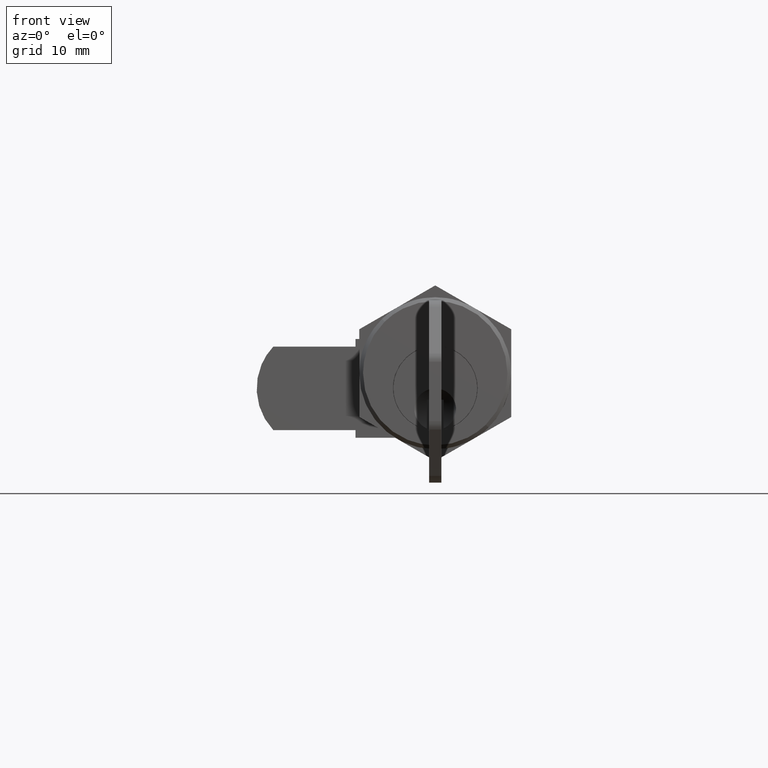
[diagram: clean part render]
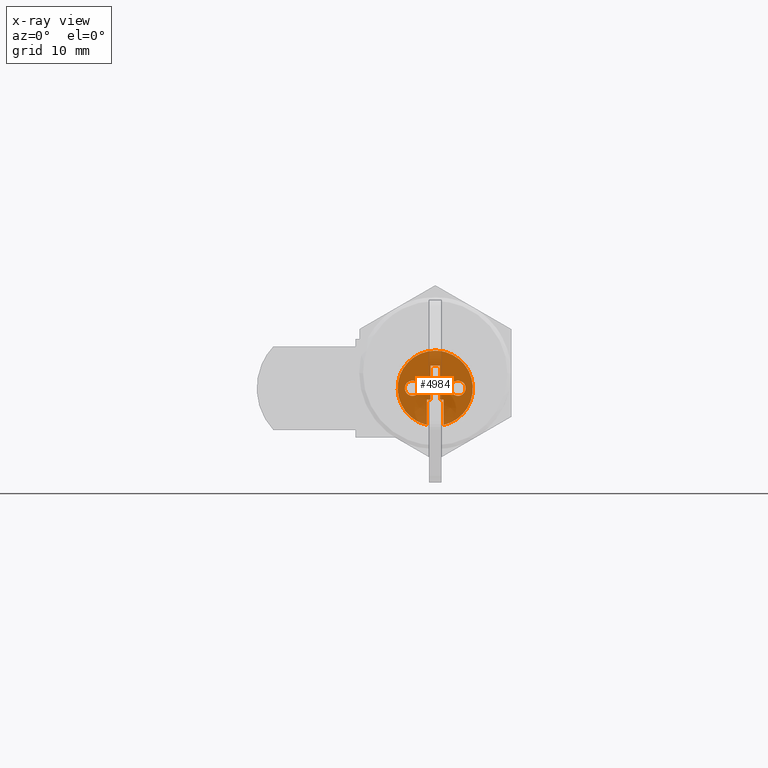
[diagram: x-ray — body ghosted, one internal face saturated and labeled with its STEP entity id]
A machine part, front view, then the same camera in x-ray: the body is ghosted and one INTERNAL B-rep face — a face not visible from any outside direction — is saturated and labeled: STEP entity #4984.
In plain terms, the highlighted face is a freeform B-spline surface patch.
Its self-contained STEP definition (entity closure, byte-faithful):
#3056=CARTESIAN_POINT('',(17.500000000000000,-2.236444006750907,-1.354257604898984));
#3057=VERTEX_POINT('',#3056);
#3063=CARTESIAN_POINT('',(17.500000000000000,-3.000000000000200,-1.0));
#3064=VERTEX_POINT('',#3063);
#3065=CARTESIAN_POINT('',(17.500000000000000,-2.236444006750907,-1.354257604898984));
#3066=CARTESIAN_POINT('',(17.499999999999972,-2.294862467365467,-1.285129228599456));
#3067=CARTESIAN_POINT('',(17.500000000000039,-2.423859136621424,-1.169056239620172));
#3068=CARTESIAN_POINT('',(17.499999999999979,-2.683298962565992,-1.035558044223572));
#3069=CARTESIAN_POINT('',(17.500000000000011,-2.882334917684869,-0.999907696575033));
#3070=CARTESIAN_POINT('',(17.500000000000000,-3.000000000000200,-1.0));
#3071=B_SPLINE_CURVE_WITH_KNOTS('',3,(#3065,#3066,#3067,#3068,#3069,#3070),.UNSPECIFIED.,.F.,.U.,(4,1,1,4),(0.000000055638269,0.271513443459081,0.515858720226509,0.868828469125581),.UNSPECIFIED.);
#3072=EDGE_CURVE('',#3057,#3064,#3071,.T.);
#3074=CARTESIAN_POINT('',(17.500000000000000,-3.999999999998161,-2.000002019345247));
#3075=VERTEX_POINT('',#3074);
#3076=CARTESIAN_POINT('',(17.500000000000000,-3.000000000000200,-1.0));
#3077=CARTESIAN_POINT('',(17.500000000000011,-3.130917829661775,-0.999857626198434));
#3078=CARTESIAN_POINT('',(17.499999999999961,-3.368068012844957,-1.047284692710715));
#3079=CARTESIAN_POINT('',(17.500000000000021,-3.678483872319169,-1.238490316446135));
#3080=CARTESIAN_POINT('',(17.500000000000089,-3.928128706786634,-1.550291968579359));
#3081=CARTESIAN_POINT('',(17.499999999999911,-4.000307448447946,-1.836323539351998));
#3082=CARTESIAN_POINT('',(17.500000000000000,-3.999999999998161,-2.000002019345247));
#3083=B_SPLINE_CURVE_WITH_KNOTS('',3,(#3076,#3077,#3078,#3079,#3080,#3081,#3082),.UNSPECIFIED.,.F.,.U.,(4,1,1,1,4),(0.000000189244568,0.392709946761096,0.711788180132907,1.079947006886161,1.570836882532952),.UNSPECIFIED.);
#3084=EDGE_CURVE('',#3064,#3075,#3083,.T.);
#3086=CARTESIAN_POINT('',(17.500000000000000,-3.000000000000200,-3.0));
#3087=VERTEX_POINT('',#3086);
#3088=CARTESIAN_POINT('',(17.500000000000000,-3.999999999998161,-2.000002019345247));
#3089=CARTESIAN_POINT('',(17.500000000000021,-4.000038485507397,-2.106350306361875));
#3090=CARTESIAN_POINT('',(17.499999999999989,-3.961872482028728,-2.343638151382455));
#3091=CARTESIAN_POINT('',(17.500000000000028,-3.809823777045670,-2.612078212431911));
#3092=CARTESIAN_POINT('',(17.499999999999940,-3.589447263134301,-2.821810014350515));
#3093=CARTESIAN_POINT('',(17.500000000000131,-3.335394529404387,-2.961623037795914));
#3094=CARTESIAN_POINT('',(17.499999999999918,-3.114546331765971,-3.000082902562582));
#3095=CARTESIAN_POINT('',(17.500000000000000,-3.000000000000200,-3.0));
#3096=B_SPLINE_CURVE_WITH_KNOTS('',3,(#3088,#3089,#3090,#3091,#3092,#3093,#3094,#3095),.UNSPECIFIED.,.F.,.U.,(4,1,1,1,1,4),(0.000000192002248,0.319069982665862,0.711787145833374,0.908118156560569,1.227217078186144,1.570834606203426),.UNSPECIFIED.);
#3097=EDGE_CURVE('',#3075,#3087,#3096,.T.);
#3099=CARTESIAN_POINT('',(17.500000000000000,-2.311645889499644,-2.725374117451083));
#3100=VERTEX_POINT('',#3099);
#3101=CARTESIAN_POINT('',(17.500000000000000,-3.000000000000200,-3.0));
#3102=CARTESIAN_POINT('',(17.499999999999989,-2.833823754676799,-3.000399305606349));
#3103=CARTESIAN_POINT('',(17.500000000000082,-2.581167606142226,-2.935425724681109));
#3104=CARTESIAN_POINT('',(17.499999999999940,-2.374738739170179,-2.785260472380591));
#3105=CARTESIAN_POINT('',(17.500000000000000,-2.311645889499644,-2.725374117451083));
#3106=B_SPLINE_CURVE_WITH_KNOTS('',3,(#3101,#3102,#3103,#3104,#3105),.UNSPECIFIED.,.F.,.U.,(4,1,4),(0.000000047227205,0.498245880255061,0.759235673296987),.UNSPECIFIED.);
#3107=EDGE_CURVE('',#3087,#3100,#3106,.T.);
#3185=CARTESIAN_POINT('',(17.500000000000000,-2.000000000002239,-1.999997980654747));
#3186=VERTEX_POINT('',#3185);
#3187=CARTESIAN_POINT('',(17.500000000000000,-2.311645889499644,-2.725374117451083));
#3188=CARTESIAN_POINT('',(17.500000000000011,-2.194861196076007,-2.614989496354446));
#3189=CARTESIAN_POINT('',(17.499999999999989,-2.044999148565709,-2.380426466190825));
#3190=CARTESIAN_POINT('',(17.500000000000011,-1.999954387315525,-2.109896924486803));
#3191=CARTESIAN_POINT('',(17.500000000000000,-2.000000000002239,-1.999997980654747));
#3192=B_SPLINE_CURVE_WITH_KNOTS('',3,(#3187,#3188,#3189,#3190,#3191),.UNSPECIFIED.,.F.,.U.,(4,1,4),(0.000000051697930,0.481886010456351,0.811601825538179),.UNSPECIFIED.);
#3193=EDGE_CURVE('',#3100,#3186,#3192,.T.);
#3195=CARTESIAN_POINT('',(17.500000000000000,-2.000000000002239,-1.999997980654747));
#3196=CARTESIAN_POINT('',(17.500000000000000,-1.999763989368924,-1.853701191058096));
#3197=CARTESIAN_POINT('',(17.500000000000000,-2.052315054601652,-1.619931947292867));
#3198=CARTESIAN_POINT('',(17.499999999999989,-2.179767271395790,-1.421247102610765));
#3199=CARTESIAN_POINT('',(17.500000000000000,-2.236444006750907,-1.354257604898984));
#3200=B_SPLINE_CURVE_WITH_KNOTS('',3,(#3195,#3196,#3197,#3198,#3199),.UNSPECIFIED.,.F.,.U.,(4,1,4),(0.000000040262601,0.438748478310818,0.702006979144675),.UNSPECIFIED.);
#3201=EDGE_CURVE('',#3186,#3057,#3200,.T.);
#3246=CARTESIAN_POINT('',(17.500000000000000,3.763555993249093,-1.354257604898984));
#3247=VERTEX_POINT('',#3246);
#3253=CARTESIAN_POINT('',(17.500000000000000,2.999999999999800,-1.0));
#3254=VERTEX_POINT('',#3253);
#3255=CARTESIAN_POINT('',(17.500000000000000,3.763555993249093,-1.354257604898984));
#3256=CARTESIAN_POINT('',(17.499999999999979,3.675982480304760,-1.250499710066789));
#3257=CARTESIAN_POINT('',(17.500000000000071,3.443230232116521,-1.068244819137016));
#3258=CARTESIAN_POINT('',(17.499999999999940,3.153888542426279,-0.999733268744602));
#3259=CARTESIAN_POINT('',(17.500000000000000,2.999999999999800,-1.0));
#3260=B_SPLINE_CURVE_WITH_KNOTS('',3,(#3255,#3256,#3257,#3258,#3259),.UNSPECIFIED.,.F.,.U.,(4,1,4),(0.000000055638317,0.407275197343132,0.868828469125581),.UNSPECIFIED.);
#3261=EDGE_CURVE('',#3247,#3254,#3260,.T.);
#3263=CARTESIAN_POINT('',(17.500000000000000,2.000000000001839,-2.000002019345247));
#3264=VERTEX_POINT('',#3263);
#3265=CARTESIAN_POINT('',(17.500000000000000,2.999999999999800,-1.0));
#3266=CARTESIAN_POINT('',(17.499999999999961,2.869082098974534,-0.999860571470230));
#3267=CARTESIAN_POINT('',(17.500000000000071,2.631923598982634,-1.047273591797308));
#3268=CARTESIAN_POINT('',(17.499999999999918,2.370941260927681,-1.208100231983225));
#3269=CARTESIAN_POINT('',(17.500000000000021,2.178195558947557,-1.410554454633494));
#3270=CARTESIAN_POINT('',(17.500000000000050,2.038368480338346,-1.664599735107410));
#3271=CARTESIAN_POINT('',(17.499999999999929,1.999918633173342,-1.885456809672581));
#3272=CARTESIAN_POINT('',(17.500000000000000,2.000000000001839,-2.000002019345247));
#3273=B_SPLINE_CURVE_WITH_KNOTS('',3,(#3265,#3266,#3267,#3268,#3269,#3270,#3271,#3272),.UNSPECIFIED.,.F.,.U.,(4,1,1,1,1,4),(0.000000189244487,0.392709946761038,0.711788180132845,0.908119476250085,1.227218858167912,1.570836882532954),.UNSPECIFIED.);
#3274=EDGE_CURVE('',#3254,#3264,#3273,.T.);
#3276=CARTESIAN_POINT('',(17.500000000000000,2.999999999999800,-3.0));
#3277=VERTEX_POINT('',#3276);
#3278=CARTESIAN_POINT('',(17.500000000000000,2.000000000001839,-2.000002019345247));
#3279=CARTESIAN_POINT('',(17.499999999999989,1.999656194426934,-2.163715865723649));
#3280=CARTESIAN_POINT('',(17.500000000000028,2.055426313408252,-2.384267149689749));
#3281=CARTESIAN_POINT('',(17.499999999999979,2.234621540391331,-2.659596210672840));
#3282=CARTESIAN_POINT('',(17.500000000000050,2.416710777424959,-2.828767050263559));
#3283=CARTESIAN_POINT('',(17.499999999999961,2.689156013081942,-2.965882636804063));
#3284=CARTESIAN_POINT('',(17.500000000000000,2.885455504309814,-3.000076113312035));
#3285=CARTESIAN_POINT('',(17.500000000000000,2.999999999999800,-3.0));
#3286=B_SPLINE_CURVE_WITH_KNOTS('',3,(#3278,#3279,#3280,#3281,#3282,#3283,#3284,#3285),.UNSPECIFIED.,.F.,.U.,(4,1,1,1,1,4),(0.000000192002417,0.490887391727756,0.662717283079001,0.981757270057957,1.227217078186153,1.570834606203426),.UNSPECIFIED.);
#3287=EDGE_CURVE('',#3264,#3277,#3286,.T.);
#3289=CARTESIAN_POINT('',(17.500000000000000,3.688354110500356,-2.725374117451084));
#3290=VERTEX_POINT('',#3289);
#3291=CARTESIAN_POINT('',(17.500000000000000,2.999999999999800,-3.0));
#3292=CARTESIAN_POINT('',(17.500000000000011,3.118642553936802,-3.000088127769450));
#3293=CARTESIAN_POINT('',(17.500000000000028,3.371652374793546,-2.954428125701828));
#3294=CARTESIAN_POINT('',(17.499999999999961,3.590916965476720,-2.818033512280004));
#3295=CARTESIAN_POINT('',(17.500000000000000,3.688354110500356,-2.725374117451084));
#3296=B_SPLINE_CURVE_WITH_KNOTS('',3,(#3291,#3292,#3293,#3294,#3295),.UNSPECIFIED.,.F.,.U.,(4,1,4),(0.000000047227244,0.355905927382937,0.759235673296986),.UNSPECIFIED.);
#3297=EDGE_CURVE('',#3277,#3290,#3296,.T.);
#3376=CARTESIAN_POINT('',(17.500000000000000,3.999999999997762,-1.999997980654747));
#3377=VERTEX_POINT('',#3376);
#3378=CARTESIAN_POINT('',(17.500000000000000,3.688354110500356,-2.725374117451084));
#3379=CARTESIAN_POINT('',(17.499999999999989,3.768103911967475,-2.649757645144265));
#3380=CARTESIAN_POINT('',(17.500000000000021,3.933330997065670,-2.430863331878103));
#3381=CARTESIAN_POINT('',(17.500000000000000,4.000319110524736,-2.160694116696333));
#3382=CARTESIAN_POINT('',(17.500000000000000,3.999999999997762,-1.999997980654747));
#3383=B_SPLINE_CURVE_WITH_KNOTS('',3,(#3378,#3379,#3380,#3381,#3382),.UNSPECIFIED.,.F.,.U.,(4,1,4),(0.000000051697809,0.329715866680651,0.811601825538179),.UNSPECIFIED.);
#3384=EDGE_CURVE('',#3290,#3377,#3383,.T.);
#3386=CARTESIAN_POINT('',(17.500000000000000,3.999999999997762,-1.999997980654747));
#3387=CARTESIAN_POINT('',(17.499999999999989,4.000005176708863,-1.912253738760188));
#3388=CARTESIAN_POINT('',(17.500000000000011,3.969072503570538,-1.678225364565427));
#3389=CARTESIAN_POINT('',(17.500000000000000,3.858180531708630,-1.465823610592073));
#3390=CARTESIAN_POINT('',(17.500000000000000,3.763555993249093,-1.354257604898984));
#3391=B_SPLINE_CURVE_WITH_KNOTS('',3,(#3386,#3387,#3388,#3389,#3390),.UNSPECIFIED.,.F.,.U.,(4,1,4),(0.000000040262549,0.263258540938360,0.702006979144677),.UNSPECIFIED.);
#3392=EDGE_CURVE('',#3377,#3247,#3391,.T.);
#4527=CARTESIAN_POINT('',(17.500000000000000,0.600000000000000,-3.500000000000000));
#4528=VERTEX_POINT('',#4527);
#4535=CARTESIAN_POINT('',(17.500000000000000,1.100000000000000,-3.500000000000000));
#4536=VERTEX_POINT('',#4535);
#4542=CARTESIAN_POINT('',(17.500000000000000,0.600000000000000,-3.500000000000000));
#4543=CARTESIAN_POINT('',(17.500000000000000,1.100000000000000,-3.500000000000000));
#4544=QUASI_UNIFORM_CURVE('',1,(#4542,#4543),.UNSPECIFIED.,.F.,.U.);
#4545=EDGE_CURVE('',#4528,#4536,#4544,.T.);
#4564=CARTESIAN_POINT('',(17.500000000000000,0.600000000000000,1.0));
#4565=VERTEX_POINT('',#4564);
#4566=CARTESIAN_POINT('',(17.500000000000000,0.600000000000000,1.0));
#4567=CARTESIAN_POINT('',(17.500000000000000,0.600000000000000,-3.500000000000000));
#4568=QUASI_UNIFORM_CURVE('',1,(#4566,#4567),.UNSPECIFIED.,.F.,.U.);
#4569=EDGE_CURVE('',#4565,#4528,#4568,.T.);
#4592=CARTESIAN_POINT('',(17.500000000000000,-0.600000000000009,1.0));
#4593=VERTEX_POINT('',#4592);
#4594=CARTESIAN_POINT('',(17.500000000000000,-0.600000000000009,1.0));
#4595=CARTESIAN_POINT('',(17.500000000000000,0.600000000000000,1.0));
#4596=QUASI_UNIFORM_CURVE('',1,(#4594,#4595),.UNSPECIFIED.,.F.,.U.);
#4597=EDGE_CURVE('',#4593,#4565,#4596,.T.);
#4612=CARTESIAN_POINT('',(17.500000000000000,-0.600000000000009,-3.500000000000000));
#4613=VERTEX_POINT('',#4612);
#4626=CARTESIAN_POINT('',(17.500000000000000,-0.600000000000009,-3.500000000000000));
#4627=CARTESIAN_POINT('',(17.500000000000000,-0.600000000000009,1.0));
#4628=QUASI_UNIFORM_CURVE('',1,(#4626,#4627),.UNSPECIFIED.,.F.,.U.);
#4629=EDGE_CURVE('',#4613,#4593,#4628,.T.);
#4639=CARTESIAN_POINT('',(17.500000000000000,-1.100000000000000,-3.500000000000000));
#4640=VERTEX_POINT('',#4639);
#4648=CARTESIAN_POINT('',(17.500000000000000,-1.100000000000000,-3.500000000000000));
#4649=CARTESIAN_POINT('',(17.500000000000000,-0.600000000000009,-3.500000000000000));
#4650=QUASI_UNIFORM_CURVE('',1,(#4648,#4649),.UNSPECIFIED.,.F.,.U.);
#4651=EDGE_CURVE('',#4640,#4613,#4650,.T.);
#4690=CARTESIAN_POINT('',(17.500000000000000,1.100000000000000,-6.826230413065670));
#4691=VERTEX_POINT('',#4690);
#4697=CARTESIAN_POINT('',(17.500000000000000,1.100000000000000,-3.500000000000000));
#4698=CARTESIAN_POINT('',(17.500000000000000,1.100000000000000,-6.826230413065670));
#4699=QUASI_UNIFORM_CURVE('',1,(#4697,#4698),.UNSPECIFIED.,.F.,.U.);
#4700=EDGE_CURVE('',#4536,#4691,#4699,.T.);
#4719=CARTESIAN_POINT('',(17.500000000000000,-1.100000000000000,-6.826230413065670));
#4720=VERTEX_POINT('',#4719);
#4721=CARTESIAN_POINT('',(17.500000000000000,-1.100000000000000,-6.826230413065670));
#4722=CARTESIAN_POINT('',(17.500000000000000,-1.100000000000000,-3.500000000000000));
#4723=QUASI_UNIFORM_CURVE('',1,(#4721,#4722),.UNSPECIFIED.,.F.,.U.);
#4724=EDGE_CURVE('',#4720,#4640,#4723,.T.);
#4910=CARTESIAN_POINT('',(17.500000000000000,5.443925333059276,-7.314553286794578));
#4911=CARTESIAN_POINT('',(17.500000000000000,-5.443948537757788,-7.314553286794578));
#4912=CARTESIAN_POINT('',(17.500000000000000,5.443925333059276,3.438322961135135));
#4913=CARTESIAN_POINT('',(17.500000000000000,-5.443948537757788,3.438322961135135));
#4914=B_SPLINE_SURFACE_WITH_KNOTS('',1,1,((#4910,#4912),(#4911,#4913)),.UNSPECIFIED.,.F.,.F.,.U.,(2,2),(2,2),(0.0,10.887873870817060),(0.0,10.752876247929709),.UNSPECIFIED.);
#4915=CARTESIAN_POINT('',(17.500000000000000,0.000000906287822,2.949999999999917));
#4916=VERTEX_POINT('',#4915);
#4917=CARTESIAN_POINT('',(17.500000000000000,0.000000906287822,2.949999999999917));
#4918=CARTESIAN_POINT('',(17.500000000000011,0.545353186969660,2.950349815670432));
#4919=CARTESIAN_POINT('',(17.500000000000050,1.485344899912317,2.792997353211144));
#4920=CARTESIAN_POINT('',(17.499999999999901,2.610772786110312,2.249047681578643));
#4921=CARTESIAN_POINT('',(17.500000000000149,3.400755607168832,1.634619911597763));
#4922=CARTESIAN_POINT('',(17.499999999999989,3.965769079974874,0.999978431032804));
#4923=CARTESIAN_POINT('',(17.499999999999961,4.488550895885449,0.170423528010872));
#4924=CARTESIAN_POINT('',(17.500000000000298,4.853147688335596,-0.806895076968086));
#4925=CARTESIAN_POINT('',(17.499999999999549,4.968574677576351,-1.783640987507408));
#4926=CARTESIAN_POINT('',(17.500000000000220,4.926561263581477,-2.667862233269967));
#4927=CARTESIAN_POINT('',(17.499999999999961,4.759467529878132,-3.463351754595191));
#4928=CARTESIAN_POINT('',(17.500000000000000,4.432541031105057,-4.247211599901135));
#4929=CARTESIAN_POINT('',(17.500000000000011,4.009640435726871,-4.938622633910441));
#4930=CARTESIAN_POINT('',(17.500000000000000,3.481314422033400,-5.555183473303790));
#4931=CARTESIAN_POINT('',(17.500000000000000,2.765524019403512,-6.140746093774308));
#4932=CARTESIAN_POINT('',(17.500000000000021,1.968209597545370,-6.573836099176975));
#4933=CARTESIAN_POINT('',(17.499999999999989,1.375007371217583,-6.763566890131365));
#4934=CARTESIAN_POINT('',(17.500000000000000,1.100000000000000,-6.826230413065670));
#4935=B_SPLINE_CURVE_WITH_KNOTS('',3,(#4917,#4918,#4919,#4920,#4921,#4922,#4923,#4924,#4925,#4926,#4927,#4928,#4929,#4930,#4931,#4932,#4933,#4934),.UNSPECIFIED.,.F.,.U.,(4,1,1,1,1,1,1,1,1,1,1,1,1,1,1,4),(0.000000233661188,1.635944023765617,2.820642983134615,3.723255104723043,4.625861909878058,5.359254312703856,6.656767066175728,7.728514577421899,8.292650254152724,9.308098235355178,10.154309250149860,10.831276325277710,11.733896936835730,12.580103444432970,13.595524552154259,14.441700071523011),.UNSPECIFIED.);
#4936=EDGE_CURVE('',#4916,#4691,#4935,.T.);
#4937=ORIENTED_EDGE('',*,*,#4936,.F.);
#4938=CARTESIAN_POINT('',(17.500000000000000,-1.100000000000000,-6.826230413065670));
#4939=CARTESIAN_POINT('',(17.499999999999972,-1.576748203993825,-6.717781900886341));
#4940=CARTESIAN_POINT('',(17.500000000000171,-2.302651793278341,-6.433978272318671));
#4941=CARTESIAN_POINT('',(17.499999999999751,-3.217963559416294,-5.799811610240361));
#4942=CARTESIAN_POINT('',(17.500000000000259,-3.827567056608594,-5.179722239284573));
#4943=CARTESIAN_POINT('',(17.499999999999741,-4.338789967001653,-4.432824598647795));
#4944=CARTESIAN_POINT('',(17.500000000000380,-4.739902373806259,-3.556746610562614));
#4945=CARTESIAN_POINT('',(17.499999999999879,-4.939826662249057,-2.631138478668817));
#4946=CARTESIAN_POINT('',(17.500000000000050,-4.964492095026327,-1.632469078721238));
#4947=CARTESIAN_POINT('',(17.500000000000050,-4.830802469700803,-0.791359583533059));
#4948=CARTESIAN_POINT('',(17.499999999999950,-4.511316552277383,0.095649085486634));
#4949=CARTESIAN_POINT('',(17.500000000000021,-4.119391739617829,0.785580536149901));
#4950=CARTESIAN_POINT('',(17.500000000000000,-3.561053143288541,1.473358201559684));
#4951=CARTESIAN_POINT('',(17.499999999999989,-2.792351299639134,2.145040398310023));
#4952=CARTESIAN_POINT('',(17.500000000000021,-1.798331329165566,2.660802404344722));
#4953=CARTESIAN_POINT('',(17.499999999999979,-0.808549709265112,2.908145768174672));
#4954=CARTESIAN_POINT('',(17.500000000000021,-0.244436719518123,2.950005274547945));
#4955=CARTESIAN_POINT('',(17.500000000000000,0.000000906287822,2.949999999999917));
#4956=B_SPLINE_CURVE_WITH_KNOTS('',3,(#4938,#4939,#4940,#4941,#4942,#4943,#4944,#4945,#4946,#4947,#4948,#4949,#4950,#4951,#4952,#4953,#4954,#4955),.UNSPECIFIED.,.F.,.U.,(4,1,1,1,1,1,1,1,1,1,1,1,1,1,1,4),(0.000000233660174,1.466701825158825,2.312916768723763,3.328361915080452,4.061739638871257,5.020773609656800,6.205423375748186,6.882426087284144,8.010629365999126,8.743984398279252,9.703010551751426,10.379973477524690,11.395414437565570,12.749344347658660,13.708382829558360,14.441701884128079),.UNSPECIFIED.);
#4957=EDGE_CURVE('',#4720,#4916,#4956,.T.);
#4958=ORIENTED_EDGE('',*,*,#4957,.F.);
#4959=ORIENTED_EDGE('',*,*,#4724,.T.);
#4960=ORIENTED_EDGE('',*,*,#4651,.T.);
#4961=ORIENTED_EDGE('',*,*,#4629,.T.);
#4962=ORIENTED_EDGE('',*,*,#4597,.T.);
#4963=ORIENTED_EDGE('',*,*,#4569,.T.);
#4964=ORIENTED_EDGE('',*,*,#4545,.T.);
#4965=ORIENTED_EDGE('',*,*,#4700,.T.);
#4966=EDGE_LOOP('',(#4937,#4958,#4959,#4960,#4961,#4962,#4963,#4964,#4965));
#4967=FACE_OUTER_BOUND('',#4966,.T.);
#4968=ORIENTED_EDGE('',*,*,#3274,.F.);
#4969=ORIENTED_EDGE('',*,*,#3261,.F.);
#4970=ORIENTED_EDGE('',*,*,#3392,.F.);
#4971=ORIENTED_EDGE('',*,*,#3384,.F.);
#4972=ORIENTED_EDGE('',*,*,#3297,.F.);
#4973=ORIENTED_EDGE('',*,*,#3287,.F.);
#4974=EDGE_LOOP('',(#4968,#4969,#4970,#4971,#4972,#4973));
#4975=FACE_BOUND('',#4974,.T.);
#4976=ORIENTED_EDGE('',*,*,#3084,.F.);
#4977=ORIENTED_EDGE('',*,*,#3072,.F.);
#4978=ORIENTED_EDGE('',*,*,#3201,.F.);
#4979=ORIENTED_EDGE('',*,*,#3193,.F.);
#4980=ORIENTED_EDGE('',*,*,#3107,.F.);
#4981=ORIENTED_EDGE('',*,*,#3097,.F.);
#4982=EDGE_LOOP('',(#4976,#4977,#4978,#4979,#4980,#4981));
#4983=FACE_BOUND('',#4982,.T.);
#4984=ADVANCED_FACE('',(#4967,#4975,#4983),#4914,.F.);